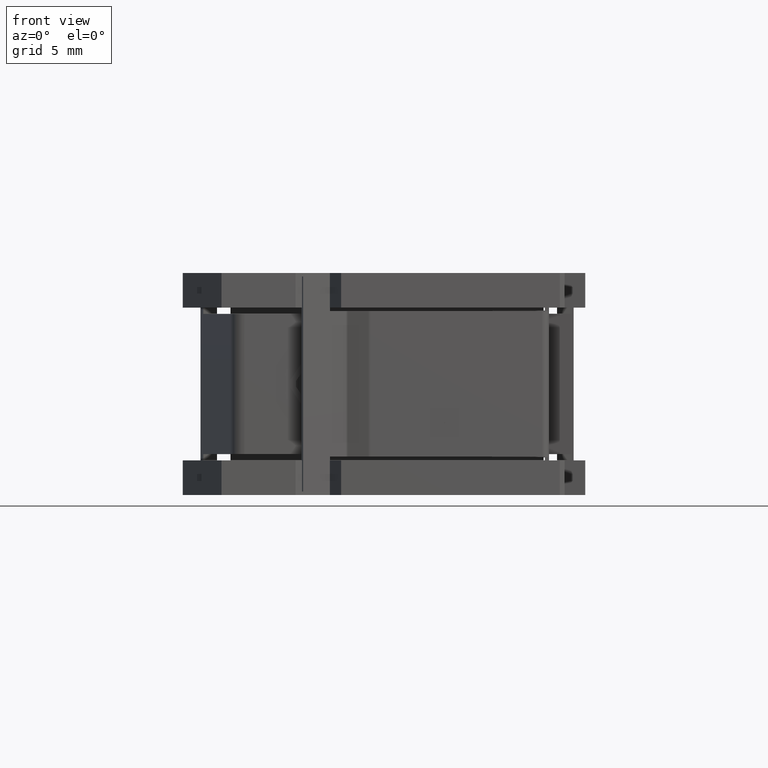
[diagram: clean part render]
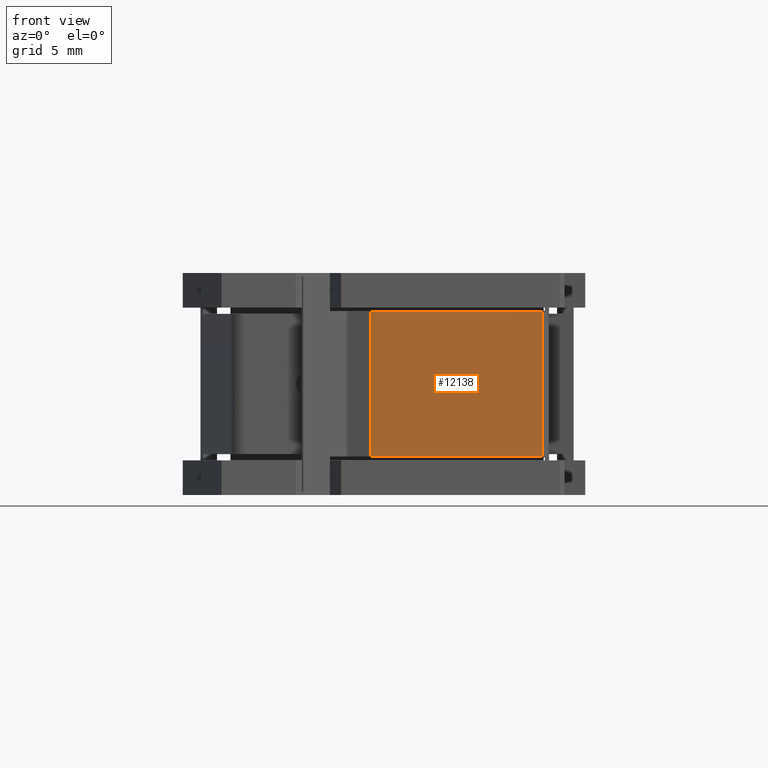
[diagram: same view with one face highlighted and labeled with its STEP entity id]
A machine part, front view. The second image highlights one B-rep face of the part: STEP entity #12138.
In plain terms, the highlighted planar face has unit normal (0, 1, 0).
Its self-contained STEP definition (entity closure, byte-faithful):
#649 = AXIS2_PLACEMENT_3D ( 'NONE', #8052, #8064, #8080 ) ;
#716 = VECTOR ( 'NONE', #3390, 1000.000000000000000 ) ;
#735 = VECTOR ( 'NONE', #3932, 1000.000000000000000 ) ;
#787 = VECTOR ( 'NONE', #3495, 1000.000000000000000 ) ;
#790 = VECTOR ( 'NONE', #3477, 1000.000000000000000 ) ;
#2754 = CARTESIAN_POINT ( 'NONE',  ( 20.91677823012386400, -0.4740000000092419700, -1.249999999999999600 ) ) ;
#3387 = LINE ( 'NONE', #3389, #716 ) ;
#3389 = CARTESIAN_POINT ( 'NONE',  ( 8.533677572348258500, -0.4740000000092419200, 11.75000000000000000 ) ) ;
#3390 = DIRECTION ( 'NONE',  ( 0.0000000000000000000, -0.0000000000000000000, 1.000000000000000000 ) ) ;
#3466 = LINE ( 'NONE', #3506, #790 ) ;
#3477 = DIRECTION ( 'NONE',  ( -1.000000000000000000, -0.0000000000000000000, 0.0000000000000000000 ) ) ;
#3495 = DIRECTION ( 'NONE',  ( 1.000000000000000000, 0.0000000000000000000, -0.0000000000000000000 ) ) ;
#3502 = LINE ( 'NONE', #3504, #787 ) ;
#3504 = CARTESIAN_POINT ( 'NONE',  ( 16.81185082887057500, -0.4740000000092419200, 9.250000000000001800 ) ) ;
#3506 = CARTESIAN_POINT ( 'NONE',  ( 16.81185082887057500, -0.4740000000092419200, -1.249999999999999300 ) ) ;
#3871 = LINE ( 'NONE', #3914, #735 ) ;
#3914 = CARTESIAN_POINT ( 'NONE',  ( 20.91677823012386400, -0.4740000000092419200, 11.75000000000000000 ) ) ;
#3932 = DIRECTION ( 'NONE',  ( 0.0000000000000000000, 0.0000000000000000000, -1.000000000000000000 ) ) ;
#4172 = EDGE_CURVE ( 'NONE', #9477, #9439, #3387, .T. ) ;
#4186 = EDGE_CURVE ( 'NONE', #9439, #9546, #3502, .T. ) ;
#4188 = EDGE_CURVE ( 'NONE', #10061, #9477, #3466, .T. ) ;
#4275 = EDGE_CURVE ( 'NONE', #9546, #10061, #3871, .T. ) ;
#8050 = PLANE ( 'NONE',  #649 ) ;
#8052 = CARTESIAN_POINT ( 'NONE',  ( 16.81185082887057500, -0.4740000000092419200, 11.75000000000000000 ) ) ;
#8064 = DIRECTION ( 'NONE',  ( 0.0000000000000000000, 1.000000000000000000, 0.0000000000000000000 ) ) ;
#8078 = FACE_OUTER_BOUND ( 'NONE', #9010, .T. ) ;
#8080 = DIRECTION ( 'NONE',  ( 0.0000000000000000000, -0.0000000000000000000, 1.000000000000000000 ) ) ;
#8554 = CARTESIAN_POINT ( 'NONE',  ( 8.533677572348258500, -0.4740000000092424200, -1.250000000000000200 ) ) ;
#8583 = CARTESIAN_POINT ( 'NONE',  ( 8.533677572348258500, -0.4740000000092424200, 9.250000000000001800 ) ) ;
#8613 = CARTESIAN_POINT ( 'NONE',  ( 20.91677823012386400, -0.4740000000092419700, 9.250000000000001800 ) ) ;
#9010 = EDGE_LOOP ( 'NONE', ( #10879, #10860, #10889, #10848 ) ) ;
#9439 = VERTEX_POINT ( 'NONE', #8583 ) ;
#9477 = VERTEX_POINT ( 'NONE', #8554 ) ;
#9546 = VERTEX_POINT ( 'NONE', #8613 ) ;
#10061 = VERTEX_POINT ( 'NONE', #2754 ) ;
#10848 = ORIENTED_EDGE ( 'NONE', *, *, #4275, .F. ) ;
#10860 = ORIENTED_EDGE ( 'NONE', *, *, #4172, .F. ) ;
#10879 = ORIENTED_EDGE ( 'NONE', *, *, #4186, .F. ) ;
#10889 = ORIENTED_EDGE ( 'NONE', *, *, #4188, .F. ) ;
#12138 = ADVANCED_FACE ( 'NONE', ( #8078 ), #8050, .F. ) ;